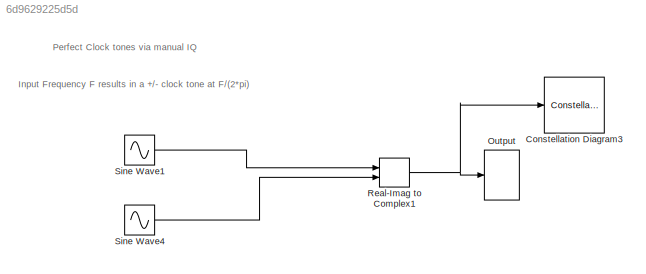
MODEL slx_6d9629225d5d
KIND model
BLOCK [ConstellationDiagram] Constellation Diagram3
  Ports = [1]
  ScopeSpecificationString = comm.scopes.ConstellationDiagramBlockCfg('CurrentConfiguration', extmgr.ConfigurationSet(extmgr.Configuration('Core','General UI',true),extmgr.Configuration('Core','Source UI',true),extmgr.Configuration('Sources','WiredSimulink',true),extmgr.Configuration('Sources','Simulink',false),extmgr.Configuration('Sources','File',false),extmgr.Configuration('Sources','Workspace',false),extmgr.Configuration(...<+1737ch>
BLOCK [SpectrumAnalyzer] Output
  Ports = [1]
  ScopeSpecificationString = spbscopes.SpectrumAnalyzerBlockCfg('CurrentConfiguration', extmgr.ConfigurationSet(extmgr.Configuration('Core','General UI',true,'DisplayFullSourceName',true,'FigureColor',[0.941176470588235 0.941176470588235 0.941176470588235]),extmgr.Configuration('Core','Source UI',true),extmgr.Configuration('Sources','WiredSimulink',true),extmgr.Configuration('Sources','Simulink',false),extmgr.Configuration('S...<+7380ch>
BLOCK [RealImagToComplex] Real-Imag to Complex1
  Ports = [2, 1]
BLOCK [Sin] Sine Wave1
  Frequency = 10*2*3.14*1000
  Phase = -pi/2
  Ports = [0, 1]
  SampleTime = 1/128000
BLOCK [Sin] Sine Wave4
  Frequency = 10*2*3.14*1000
  Ports = [0, 1]
  SampleTime = 1/128000
ANNOTATION (root): Perfect Clock tones via manual IQ
ANNOTATION (root): Input Frequency F results in a +/- clock tone at F/(2*pi)
NET Real-Imag to Complex1:1 -> Constellation Diagram3:1, Output:1
LINE Sine Wave1:1 -> Real-Imag to Complex1:1
LINE Sine Wave4:1 -> Real-Imag to Complex1:2
note: NET lines group one-source signal fan-out (src -> all destinations, sorted); 1:1 wires keep LINE
